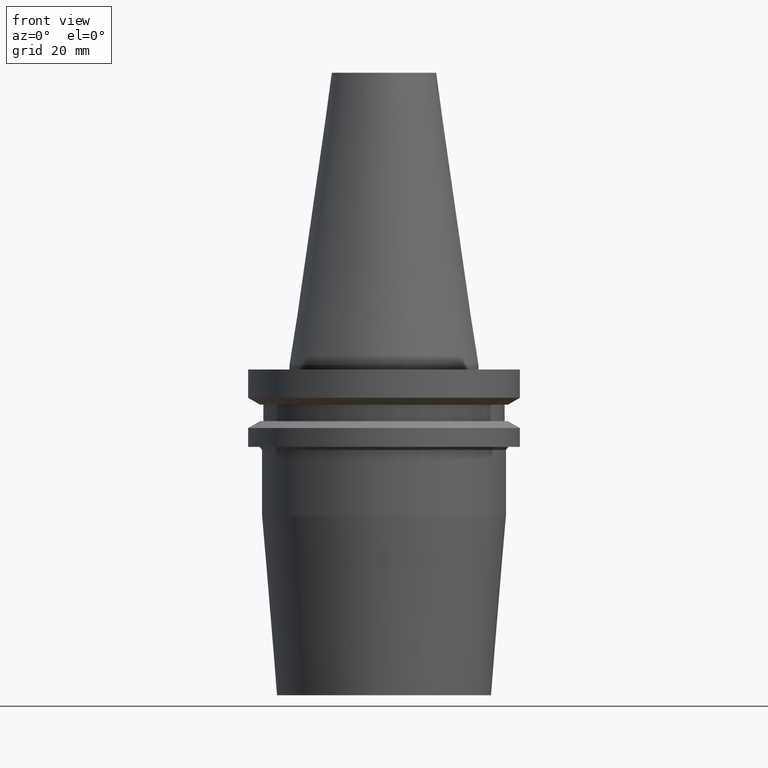
[diagram: clean part render]
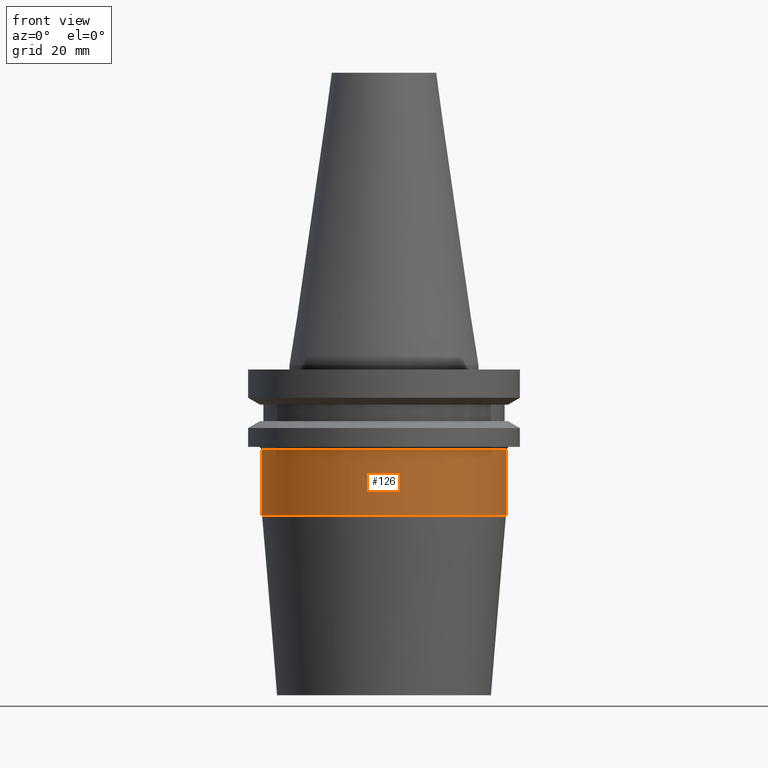
[diagram: same view with one face highlighted and labeled with its STEP entity id]
A machine part, front view. The second image highlights one B-rep face of the part: STEP entity #126.
In plain terms, the highlighted cylindrical surface (bore or boss wall) has radius 28.5 mm, axis along (0, -0, -1).
Its self-contained STEP definition (entity closure, byte-faithful):
#61=EDGE_CURVE('Unnamed[1]',#161,#161,#162,.T.);
#80=EDGE_CURVE('Unnamed[1]',#191,#191,#192,.T.);
#126=ADVANCED_FACE('Unnamed[1]',(#261,#262),#263,.T.);
#161=VERTEX_POINT('',#296);
#162=CIRCLE('',#297,28.5000000000002);
#191=VERTEX_POINT('',#333);
#192=CIRCLE('',#334,28.5000000000001);
#261=FACE_BOUND('',#420,.T.);
#262=FACE_BOUND('',#421,.T.);
#263=CYLINDRICAL_SURFACE('',#422,28.5000000000001);
#296=CARTESIAN_POINT('',(1.20933871415802E-015,28.5000000000002,-19.7500000000001));
#297=AXIS2_PLACEMENT_3D('',#451,#452,#453);
#333=CARTESIAN_POINT('',(2.14313189850787E-015,28.5,-35.0));
#334=AXIS2_PLACEMENT_3D('',#486,#487,#488);
#420=EDGE_LOOP('',(#562));
#421=EDGE_LOOP('',(#563));
#422=AXIS2_PLACEMENT_3D('',#564,#565,#566);
#451=CARTESIAN_POINT('',(1.20933871415802E-015,-1.94006774103936E-014,-19.7500000000001));
#452=DIRECTION('',(6.12323399573677E-017,-1.22696610407861E-016,-1.0));
#453=DIRECTION('',(2.68584782934324E-033,1.0,-1.22696610407861E-016));
#486=CARTESIAN_POINT('',(2.14313189850787E-015,-2.12718007191132E-014,-35.0));
#487=DIRECTION('',(6.12323399573677E-017,-1.22696610407861E-016,-1.0));
#488=DIRECTION('',(2.68584782934325E-033,1.0,-1.22696610407861E-016));
#562=ORIENTED_EDGE('',*,*,#80,.F.);
#563=ORIENTED_EDGE('',*,*,#61,.T.);
#564=CARTESIAN_POINT('',(1.67623530633294E-015,-2.03362390647534E-014,-27.375));
#565=DIRECTION('',(6.12323399573677E-017,-1.22696610407861E-016,-1.0));
#566=DIRECTION('',(2.68584782934324E-033,1.0,-1.22696610407861E-016));